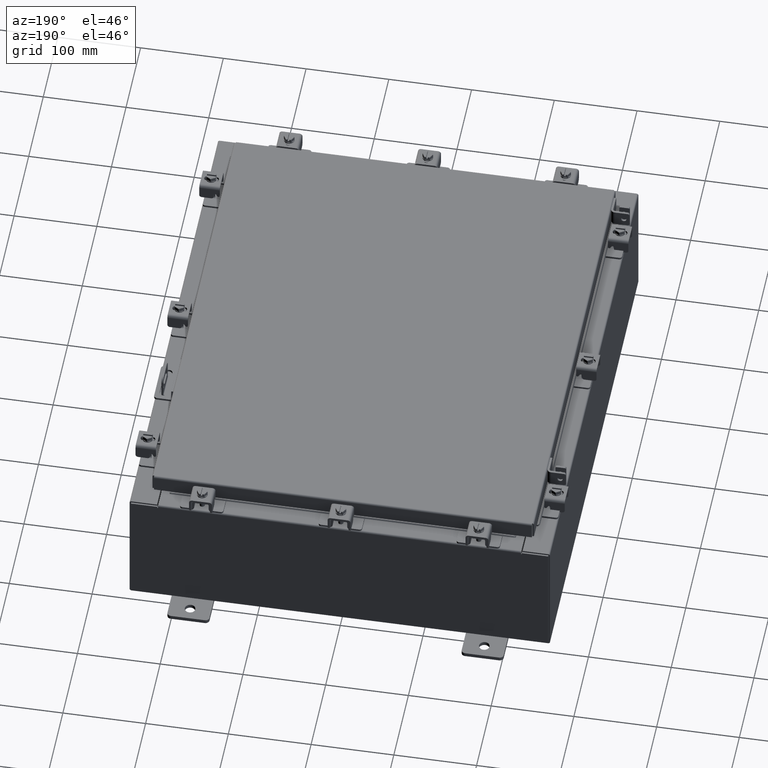
[diagram: clean part render]
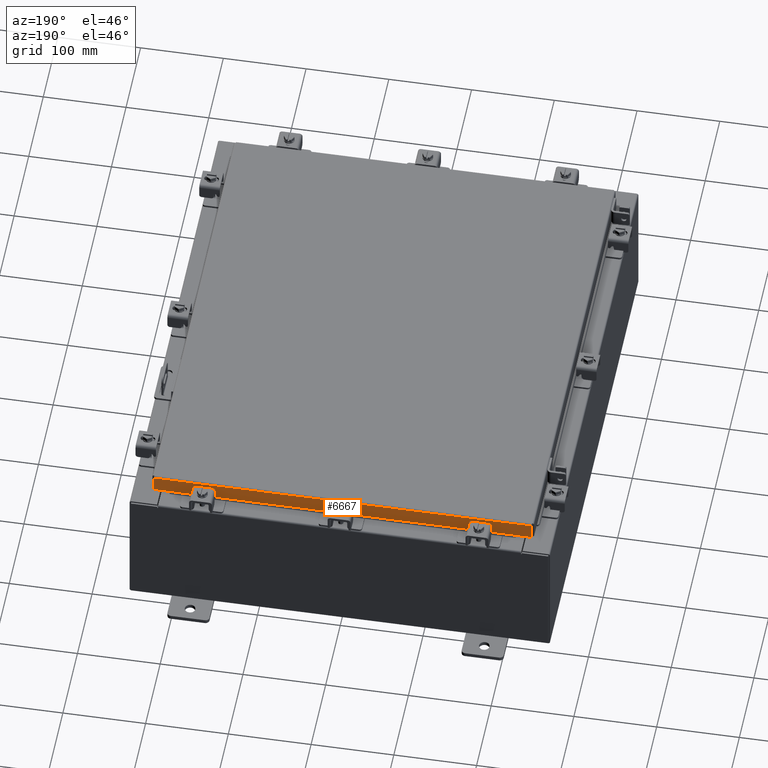
[diagram: same view with one face highlighted and labeled with its STEP entity id]
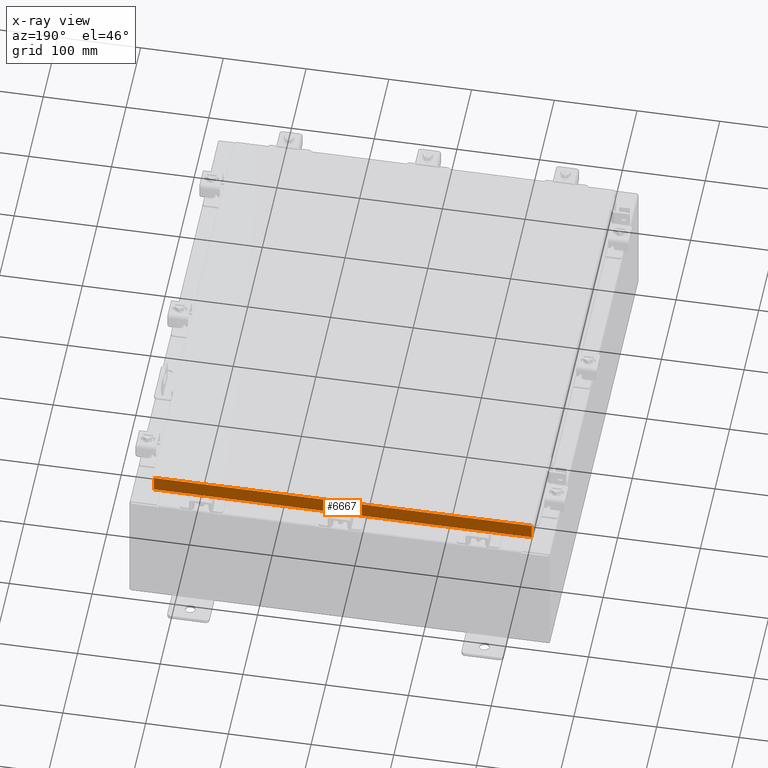
[diagram: x-ray of the same camera — body ghosted, the highlighted face saturated]
A machine part, auxiliary view. The second image highlights one B-rep face of the part: STEP entity #6667.
The next image is the same camera in x-ray: the body ghosted, the highlighted face saturated — about 0% of this face is hidden behind the body in this view.
In plain terms, the highlighted planar face has unit normal (0, -1, -0).
Its self-contained STEP definition (entity closure, byte-faithful):
#287 = EDGE_CURVE ( 'NONE', #16050, #12480, #5356, .T. ) ;
#739 = ORIENTED_EDGE ( 'NONE', *, *, #21868, .F. ) ;
#1055 = ORIENTED_EDGE ( 'NONE', *, *, #16115, .F. ) ;
#1408 = CARTESIAN_POINT ( 'NONE',  ( -9.077999999999999400, 11.09400000000000100, -0.8500000000000019800 ) ) ;
#1524 = VERTEX_POINT ( 'NONE', #10674 ) ;
#1565 = VECTOR ( 'NONE', #13448, 39.37007874015748100 ) ;
#2440 = LINE ( 'NONE', #1408, #20955 ) ;
#3038 = CARTESIAN_POINT ( 'NONE',  ( -9.077999999999999400, 11.09399999999999900, -0.08770000000000007000 ) ) ;
#3850 = EDGE_CURVE ( 'NONE', #4664, #16050, #19565, .T. ) ;
#4664 = VERTEX_POINT ( 'NONE', #4910 ) ;
#4830 = DIRECTION ( 'NONE',  ( -1.000000000000000000, -3.605222026166234800E-031, -9.826997386333231700E-046 ) ) ;
#4910 = CARTESIAN_POINT ( 'NONE',  ( -8.989157864376267100, 11.09400000000000100, -0.8500000000000019800 ) ) ;
#5167 = CARTESIAN_POINT ( 'NONE',  ( -8.989157864376267100, 11.09399999999999900, -0.07469999999999978000 ) ) ;
#5298 = EDGE_CURVE ( 'NONE', #21740, #1524, #5410, .T. ) ;
#5356 = LINE ( 'NONE', #14169, #14503 ) ;
#5410 = LINE ( 'NONE', #16381, #13460 ) ;
#6124 = DIRECTION ( 'NONE',  ( 0.0000000000000000000, 2.818880942772351900E-015, -1.000000000000000000 ) ) ;
#6337 = DIRECTION ( 'NONE',  ( 1.000000000000000000, -0.0000000000000000000, -0.0000000000000000000 ) ) ;
#6667 = ADVANCED_FACE ( 'NONE', ( #14244 ), #16634, .F. ) ;
#6921 = DIRECTION ( 'NONE',  ( -0.0000000000000000000, 2.818880942772351900E-015, -1.000000000000000000 ) ) ;
#7972 = AXIS2_PLACEMENT_3D ( 'NONE', #9783, #21900, #11508 ) ;
#9220 = LINE ( 'NONE', #3038, #17874 ) ;
#9783 = CARTESIAN_POINT ( 'NONE',  ( -3.999633315828819900E-030, 11.09399999999999900, 3.153347883512804900E-014 ) ) ;
#10486 = EDGE_CURVE ( 'NONE', #10842, #4664, #12865, .T. ) ;
#10674 = CARTESIAN_POINT ( 'NONE',  ( 8.989157864376267100, 11.09400000000000100, -0.8499999999999996400 ) ) ;
#10842 = VERTEX_POINT ( 'NONE', #20143 ) ;
#11485 = CARTESIAN_POINT ( 'NONE',  ( 8.989157864376267100, 11.09399999999999900, -0.08770000000000007000 ) ) ;
#11508 = DIRECTION ( 'NONE',  ( 0.0000000000000000000, 2.818880942772351900E-015, -1.000000000000000000 ) ) ;
#11521 = ORIENTED_EDGE ( 'NONE', *, *, #3850, .F. ) ;
#12480 = VERTEX_POINT ( 'NONE', #20907 ) ;
#12865 = LINE ( 'NONE', #5167, #21595 ) ;
#13266 = CARTESIAN_POINT ( 'NONE',  ( -8.239157864376267100, 11.09399999999999900, -0.8500000000000046400 ) ) ;
#13448 = DIRECTION ( 'NONE',  ( 1.000000000000000000, -4.379057701015054300E-047, 1.278955053213606700E-016 ) ) ;
#13460 = VECTOR ( 'NONE', #6124, 39.37007874015748100 ) ;
#13568 = DIRECTION ( 'NONE',  ( 1.000000000000000000, -4.379057701015054300E-047, 1.278955053213606700E-016 ) ) ;
#13627 = CARTESIAN_POINT ( 'NONE',  ( -9.077999999999999400, 11.09400000000000100, -0.8500000000000019800 ) ) ;
#14169 = CARTESIAN_POINT ( 'NONE',  ( -8.239157864376267100, 11.09399999999999900, -0.8500000000000046400 ) ) ;
#14244 = FACE_OUTER_BOUND ( 'NONE', #16925, .T. ) ;
#14503 = VECTOR ( 'NONE', #6337, 39.37007874015748100 ) ;
#16050 = VERTEX_POINT ( 'NONE', #13266 ) ;
#16115 = EDGE_CURVE ( 'NONE', #21740, #10842, #9220, .T. ) ;
#16381 = CARTESIAN_POINT ( 'NONE',  ( 8.989157864376267100, 11.09399999999999900, 3.153347883512804900E-014 ) ) ;
#16634 = PLANE ( 'NONE',  #7972 ) ;
#16925 = EDGE_LOOP ( 'NONE', ( #1055, #19668, #739, #21220, #11521, #21553 ) ) ;
#17874 = VECTOR ( 'NONE', #4830, 39.37007874015748100 ) ;
#19565 = LINE ( 'NONE', #13627, #1565 ) ;
#19668 = ORIENTED_EDGE ( 'NONE', *, *, #5298, .T. ) ;
#20143 = CARTESIAN_POINT ( 'NONE',  ( -8.989157864376267100, 11.09399999999999900, -0.08770000000000007000 ) ) ;
#20907 = CARTESIAN_POINT ( 'NONE',  ( 8.239157864376267100, 11.09399999999999900, -0.8500000000000046400 ) ) ;
#20955 = VECTOR ( 'NONE', #13568, 39.37007874015748100 ) ;
#21220 = ORIENTED_EDGE ( 'NONE', *, *, #287, .F. ) ;
#21553 = ORIENTED_EDGE ( 'NONE', *, *, #10486, .F. ) ;
#21595 = VECTOR ( 'NONE', #6921, 39.37007874015748100 ) ;
#21740 = VERTEX_POINT ( 'NONE', #11485 ) ;
#21868 = EDGE_CURVE ( 'NONE', #12480, #1524, #2440, .T. ) ;
#21900 = DIRECTION ( 'NONE',  ( 3.605222026166233900E-031, -1.000000000000000000, -2.818880942772351900E-015 ) ) ;